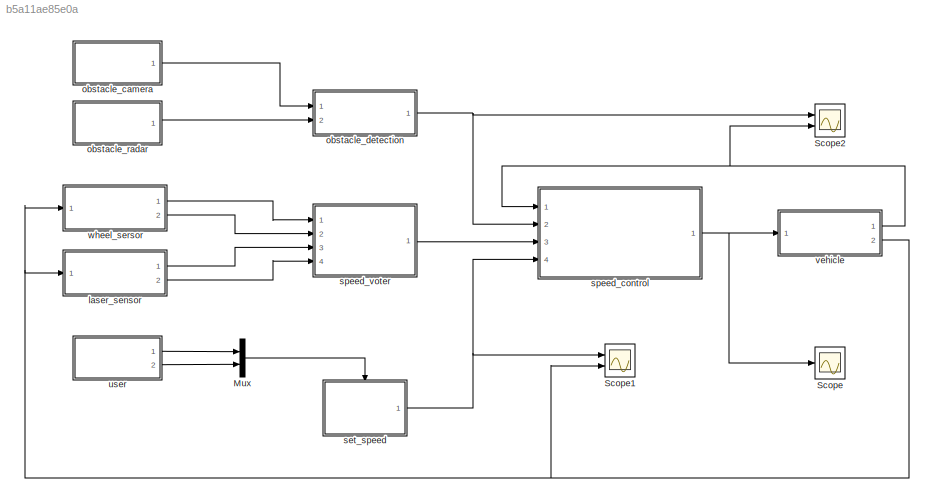
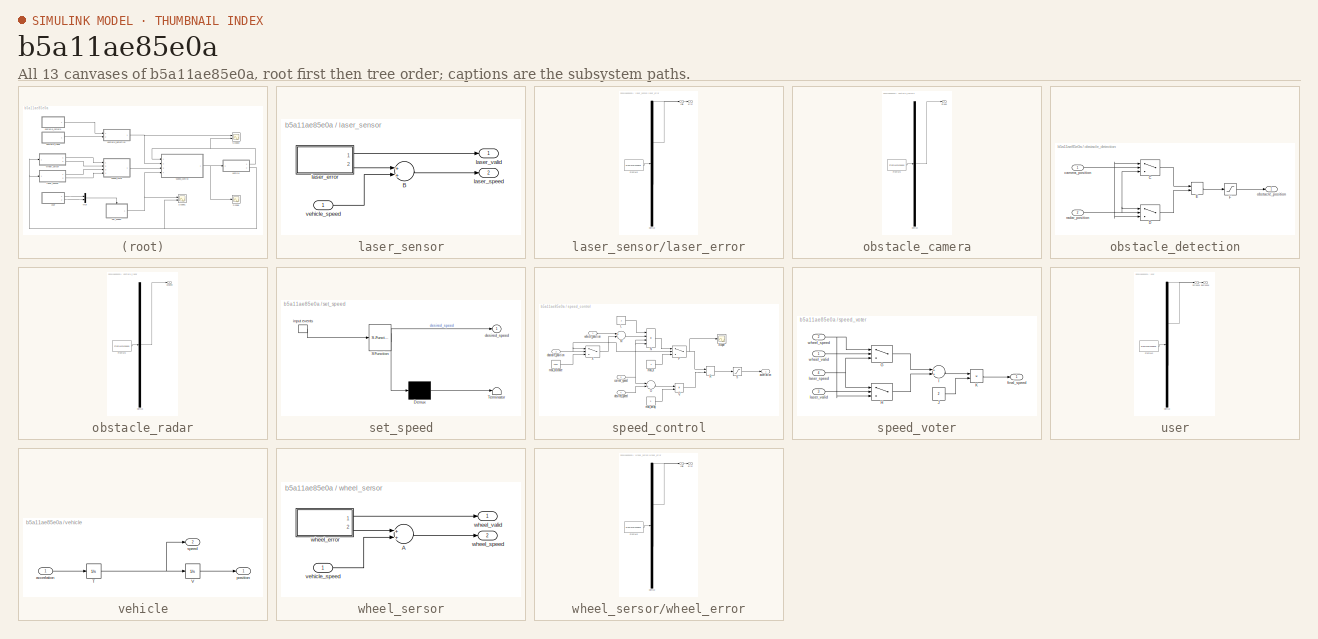
[diagram: thumbnail index - all 13 canvases of the model, root first then tree order]
MODEL slx_b5a11ae85e0a
KIND model
CONFIG AbsTol = auto
CONFIG EnableMultiTasking = off
CONFIG FixedStep = auto
CONFIG MaxStep = auto
CONFIG MinStep = auto
CONFIG RelTol = 1e-3
CONFIG SampleTimeConstraint = Unconstrained
CONFIG Solver = VariableStepAuto
CONFIG SolverName = VariableStepAuto
CONFIG StartTime = 0.0
CONFIG StopTime = 20
BLOCK [Mux] Mux
  DisplayOption = bar
  Inputs = 2
  Ports = [2, 1]
BLOCK [Scope] Scope
  Floating = off
  NumInputPorts = 1
  Ports = [1]
  ScopeSpecificationString = Simulink.scopes.TimeScopeBlockCfg('CurrentConfiguration', extmgr.ConfigurationSet(extmgr.Configuration('Core','General UI',true),extmgr.Configuration('Core','Source UI',true),extmgr.Configuration('Sources','WiredSimulink',true,'DataLoggingVariableName','ScopeData1'),extmgr.Configuration('Visuals','Time Domain',true,'SerializedDisplays',{struct('MinYLimReal','-0.52146','MaxYLimReal','1.0978','YLabe...<+1368ch>
BLOCK [Scope] Scope1
  Floating = off
  NumInputPorts = 2
  Ports = [2]
  ScopeSpecificationString = Simulink.scopes.TimeScopeBlockCfg('CurrentConfiguration', extmgr.ConfigurationSet(extmgr.Configuration('Core','General UI',true),extmgr.Configuration('Core','Source UI',true),extmgr.Configuration('Sources','WiredSimulink',true,'DataLoggingVariableName','ScopeData2'),extmgr.Configuration('Visuals','Time Domain',true,'SerializedDisplays',{struct('MinYLimReal','-0.375','MaxYLimReal','3.375','YLabelRe...<+1397ch>
BLOCK [Scope] Scope2
  Floating = off
  NumInputPorts = 2
  Ports = [2]
  ScopeSpecificationString = Simulink.scopes.TimeScopeBlockCfg('CurrentConfiguration', extmgr.ConfigurationSet(extmgr.Configuration('Core','General UI',true),extmgr.Configuration('Core','Source UI',true),extmgr.Configuration('Sources','WiredSimulink',true),extmgr.Configuration('Visuals','Time Domain',true,'SerializedDisplays',{struct('MinYLimReal','-8.13864','MaxYLimReal','73.24778','YLabelReal','','MinYLimMag','0.00000','Max...<+1354ch>
BLOCK [SubSystem] laser_sensor
  Ports = [1, 2]
  RequestExecContextInheritance = off
BLOCK [Sum] laser_sensor/B
  InputSameDT = off
  OutDataTypeStr = Inherit: Inherit via internal rule
  Ports = [2, 1]
  SampleTime = 0.1
  SaturateOnIntegerOverflow = off
BLOCK [SubSystem] laser_sensor/laser_error
  ClipboardFcn = sigbuilder_block('clipboard');
  CloseFcn = sigbuilder_block('close');
  ContinueFcn = sigbuilder_block('continue');
  CopyFcn = sigbuilder_block('copy');
  DeleteFcn = sigbuilder_block('delete');
  LoadFcn = sigbuilder_block('load');
  MaskHideContents = on
  ModelCloseFcn = sigbuilder_block('modelClose');
  NameChangeFcn = sigbuilder_block('namechange');
  OpenFcn = sigbuilder_block('open',[0 68 1280 636 ]);
  PauseFcn = sigbuilder_block('pause');
  Ports = [0, 2]
  PreSaveFcn = sigbuilder_block('preSave');
  RequestExecContextInheritance = off
  StartFcn = sigbuilder_block('start');
  StopFcn = sigbuilder_block('stop');
  Tag = STV Subsys
BLOCK [Demux] laser_sensor/laser_error/Demux
  Outputs = 2
  Ports = [1, 2]
  Tag = STV Demux
BLOCK [FromWorkspace] laser_sensor/laser_error/FromWs
  SampleTime = 0
  Tag = STV FromWs
  VariableName = tuvar
  ZeroCross = on
BLOCK [Outport] laser_sensor/laser_error/error
  IconDisplay = Port number
  Port = 2
  Tag = STV Outport
BLOCK [Outport] laser_sensor/laser_error/valid
  IconDisplay = Port number
  Tag = STV Outport
BLOCK [Outport] laser_sensor/laser_speed
  IconDisplay = Port number
  Port = 2
BLOCK [Outport] laser_sensor/laser_valid
  IconDisplay = Port number
BLOCK [Inport] laser_sensor/vehicle_speed
  IconDisplay = Port number
BLOCK [SubSystem] obstacle_camera
  ClipboardFcn = sigbuilder_block('clipboard');
  CloseFcn = sigbuilder_block('close');
  ContinueFcn = sigbuilder_block('continue');
  CopyFcn = sigbuilder_block('copy');
  DeleteFcn = sigbuilder_block('delete');
  LoadFcn = sigbuilder_block('load');
  MaskHideContents = on
  ModelCloseFcn = sigbuilder_block('modelClose');
  NameChangeFcn = sigbuilder_block('namechange');
  OpenFcn = sigbuilder_block('open',[0 68 1280 636 ]);
  PauseFcn = sigbuilder_block('pause');
  Ports = [0, 1]
  PreSaveFcn = sigbuilder_block('preSave');
  RequestExecContextInheritance = off
  StartFcn = sigbuilder_block('start');
  StopFcn = sigbuilder_block('stop');
  Tag = STV Subsys
BLOCK [Demux] obstacle_camera/Demux
  Outputs = 1
  Ports = [1, 1]
  Tag = STV Demux
BLOCK [FromWorkspace] obstacle_camera/FromWs
  SampleTime = 0
  Tag = STV FromWs
  VariableName = tuvar
  ZeroCross = on
BLOCK [Outport] obstacle_camera/image
  IconDisplay = Port number
  Tag = STV Outport
BLOCK [SubSystem] obstacle_detection
  Ports = [2, 1]
  RequestExecContextInheritance = off
BLOCK [Switch] obstacle_detection/C
  Criteria = u2 > Threshold
  InputSameDT = off
  SampleTime = 0.1
  SaturateOnIntegerOverflow = off
BLOCK [Switch] obstacle_detection/D
  Criteria = u2 > Threshold
  InputSameDT = off
  SampleTime = 0.1
  SaturateOnIntegerOverflow = off
BLOCK [MinMax] obstacle_detection/E
  InputSameDT = off
  Inputs = 2
  Ports = [2, 1]
  SampleTime = 0.1
  SaturateOnIntegerOverflow = off
BLOCK [Saturate] obstacle_detection/F
  InputPortMap = u0
  LowerLimit = 0
  Ports = [1, 1]
  SampleTime = 0.1
  UpperLimit = 100
BLOCK [Inport] obstacle_detection/camera_position
  IconDisplay = Port number
BLOCK [Outport] obstacle_detection/obstacle_position
  IconDisplay = Port number
BLOCK [Inport] obstacle_detection/radar_position
  IconDisplay = Port number
  Port = 2
BLOCK [SubSystem] obstacle_radar
  ClipboardFcn = sigbuilder_block('clipboard');
  CloseFcn = sigbuilder_block('close');
  ContinueFcn = sigbuilder_block('continue');
  CopyFcn = sigbuilder_block('copy');
  DeleteFcn = sigbuilder_block('delete');
  LoadFcn = sigbuilder_block('load');
  MaskHideContents = on
  ModelCloseFcn = sigbuilder_block('modelClose');
  NameChangeFcn = sigbuilder_block('namechange');
  OpenFcn = sigbuilder_block('open',[0 68 1280 636 ]);
  PauseFcn = sigbuilder_block('pause');
  Ports = [0, 1]
  PreSaveFcn = sigbuilder_block('preSave');
  RequestExecContextInheritance = off
  StartFcn = sigbuilder_block('start');
  StopFcn = sigbuilder_block('stop');
  Tag = STV Subsys
BLOCK [Demux] obstacle_radar/Demux
  Outputs = 1
  Ports = [1, 1]
  Tag = STV Demux
BLOCK [FromWorkspace] obstacle_radar/FromWs
  SampleTime = 0
  Tag = STV FromWs
  VariableName = tuvar
  ZeroCross = on
BLOCK [Outport] obstacle_radar/position
  IconDisplay = Port number
  Tag = STV Outport
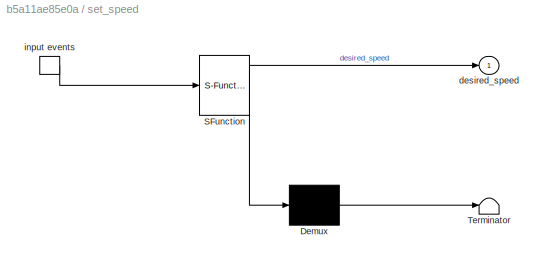
BLOCK [SubSystem] set_speed
  ErrorFcn = Stateflow.Translate.translate
  PermitHierarchicalResolution = ExplicitOnly
  Ports = [0, 1, 0, 1]
  RequestExecContextInheritance = off
  SFBlockType = Chart
  TreatAsAtomicUnit = on
BLOCK [Demux] set_speed/ Demux 
  Outputs = 1
  Ports = [1, 1]
BLOCK [S-Function] set_speed/ SFunction 
  EnableBusSupport = on
  FunctionName = sf_sfun
  PortCounts = [1 2]
  Ports = [1, 2]
  SFcnIsStateOwnerBlock = off
  SFunctionDeploymentMode = off
  Tag = Stateflow S-Function velocity_control_with_stateflow 3
BLOCK [Terminator] set_speed/ Terminator 
BLOCK [Outport] set_speed/desired_speed
  IconDisplay = Port number
BLOCK [TriggerPort] set_speed/input events
  Ports = [0, 1]
  ShowOutputPort = on
  StatesWhenEnabling = held
  TriggerType = either
  VariantControl = (inherit)
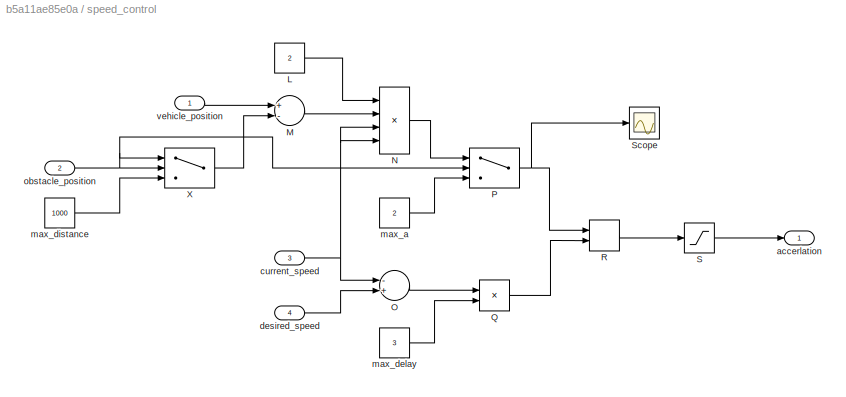
BLOCK [SubSystem] speed_control
  Ports = [4, 1]
  RequestExecContextInheritance = off
BLOCK [Constant] speed_control/L
  Value = 2
BLOCK [Sum] speed_control/M
  InputSameDT = off
  Inputs = +-
  OutDataTypeStr = Inherit: Inherit via internal rule
  Ports = [2, 1]
  SampleTime = 0.1
  SaturateOnIntegerOverflow = off
BLOCK [Product] speed_control/N
  InputSameDT = off
  Inputs = //**
  OutDataTypeStr = Inherit: Inherit via internal rule
  Ports = [4, 1]
  RndMeth = Floor
  SampleTime = 0.1
  SaturateOnIntegerOverflow = off
BLOCK [Sum] speed_control/O
  InputSameDT = off
  Inputs = -+
  OutDataTypeStr = Inherit: Inherit via internal rule
  Ports = [2, 1]
  SampleTime = 0.1
  SaturateOnIntegerOverflow = off
BLOCK [Switch] speed_control/P
  Criteria = u2 ~= 0
  InputSameDT = off
  SampleTime = 0.1
  SaturateOnIntegerOverflow = off
BLOCK [Product] speed_control/Q
  InputSameDT = off
  Inputs = */
  OutDataTypeStr = Inherit: Inherit via internal rule
  Ports = [2, 1]
  RndMeth = Floor
  SampleTime = 0.1
  SaturateOnIntegerOverflow = off
BLOCK [MinMax] speed_control/R
  InputSameDT = off
  Inputs = 2
  Ports = [2, 1]
  SampleTime = 0.1
  SaturateOnIntegerOverflow = off
BLOCK [Saturate] speed_control/S
  InputPortMap = u0
  LowerLimit = -2
  Ports = [1, 1]
  SampleTime = 0.1
  UpperLimit = 2
BLOCK [Scope] speed_control/Scope
  Floating = off
  NumInputPorts = 1
  Ports = [1]
  ScopeSpecificationString = Simulink.scopes.TimeScopeBlockCfg('CurrentConfiguration', extmgr.ConfigurationSet(extmgr.Configuration('Core','General UI',true),extmgr.Configuration('Core','Source UI',true),extmgr.Configuration('Sources','WiredSimulink',true,'DataLoggingVariableName','ScopeData3'),extmgr.Configuration('Visuals','Time Domain',true,'SerializedDisplays',{struct('MinYLimReal','-0.64405','MaxYLimReal','2.29378','YLab...<+1365ch>
BLOCK [Switch] speed_control/X
  Criteria = u2 ~= 0
  InputSameDT = off
  SampleTime = 0.1
  SaturateOnIntegerOverflow = off
BLOCK [Outport] speed_control/accerlation
  IconDisplay = Port number
BLOCK [Inport] speed_control/current_speed
  IconDisplay = Port number
  Port = 3
BLOCK [Inport] speed_control/desired_speed
  IconDisplay = Port number
  Port = 4
BLOCK [Constant] speed_control/max_a
  Value = 2
BLOCK [Constant] speed_control/max_delay
  Value = 3
BLOCK [Constant] speed_control/max_distance
  Value = 1000
BLOCK [Inport] speed_control/obstacle_position
  IconDisplay = Port number
  Port = 2
BLOCK [Inport] speed_control/vehicle_position
  IconDisplay = Port number
BLOCK [SubSystem] speed_voter
  Ports = [4, 1]
  RequestExecContextInheritance = off
BLOCK [Switch] speed_voter/G
  Criteria = u2 > Threshold
  InputSameDT = off
  SampleTime = 0.1
  SaturateOnIntegerOverflow = off
BLOCK [Switch] speed_voter/H
  Criteria = u2 > Threshold
  InputSameDT = off
  SampleTime = 0.1
  SaturateOnIntegerOverflow = off
BLOCK [Sum] speed_voter/I
  InputSameDT = off
  OutDataTypeStr = Inherit: Inherit via internal rule
  Ports = [2, 1]
  SampleTime = 0.1
  SaturateOnIntegerOverflow = off
BLOCK [Constant] speed_voter/J
  Value = 2
BLOCK [Product] speed_voter/K
  InputSameDT = off
  Inputs = */
  OutDataTypeStr = Inherit: Inherit via internal rule
  Ports = [2, 1]
  RndMeth = Floor
  SampleTime = 0.1
  SaturateOnIntegerOverflow = off
BLOCK [Outport] speed_voter/final_speed
  IconDisplay = Port number
BLOCK [Inport] speed_voter/laser_speed
  IconDisplay = Port number
  Port = 4
BLOCK [Inport] speed_voter/laser_valid
  IconDisplay = Port number
  Port = 3
BLOCK [Inport] speed_voter/wheel_speed
  IconDisplay = Port number
  Port = 2
BLOCK [Inport] speed_voter/wheel_valid
  IconDisplay = Port number
BLOCK [SubSystem] user
  ClipboardFcn = sigbuilder_block('clipboard');
  CloseFcn = sigbuilder_block('close');
  ContinueFcn = sigbuilder_block('continue');
  CopyFcn = sigbuilder_block('copy');
  DeleteFcn = sigbuilder_block('delete');
  LoadFcn = sigbuilder_block('load');
  MaskHideContents = on
  ModelCloseFcn = sigbuilder_block('modelClose');
  NameChangeFcn = sigbuilder_block('namechange');
  OpenFcn = sigbuilder_block('open',[0 68 1280 636 ]);
  PauseFcn = sigbuilder_block('pause');
  Ports = [0, 2]
  PreSaveFcn = sigbuilder_block('preSave');
  RequestExecContextInheritance = off
  StartFcn = sigbuilder_block('start');
  StopFcn = sigbuilder_block('stop');
  Tag = STV Subsys
BLOCK [Demux] user/Demux
  Outputs = 2
  Ports = [1, 2]
  Tag = STV Demux
BLOCK [FromWorkspace] user/FromWs
  SampleTime = 0
  Tag = STV FromWs
  VariableName = tuvar
  ZeroCross = on
BLOCK [Outport] user/decrease
  IconDisplay = Port number
  Port = 2
  Tag = STV Outport
BLOCK [Outport] user/increase
  IconDisplay = Port number
  Tag = STV Outport
BLOCK [SubSystem] vehicle
  Ports = [1, 2]
  RequestExecContextInheritance = off
BLOCK [Integrator] vehicle/T
  Ports = [1, 1]
BLOCK [Integrator] vehicle/V
  Ports = [1, 1]
BLOCK [Inport] vehicle/accerlation
  IconDisplay = Port number
BLOCK [Outport] vehicle/position
  IconDisplay = Port number
BLOCK [Outport] vehicle/speed
  IconDisplay = Port number
  Port = 2
BLOCK [SubSystem] wheel_sersor
  Ports = [1, 2]
  RequestExecContextInheritance = off
BLOCK [Sum] wheel_sersor/A
  InputSameDT = off
  OutDataTypeStr = Inherit: Inherit via internal rule
  Ports = [2, 1]
  SampleTime = 0.1
  SaturateOnIntegerOverflow = off
BLOCK [Inport] wheel_sersor/vehicle_speed
  IconDisplay = Port number
BLOCK [SubSystem] wheel_sersor/wheel_error
  ClipboardFcn = sigbuilder_block('clipboard');
  CloseFcn = sigbuilder_block('close');
  ContinueFcn = sigbuilder_block('continue');
  CopyFcn = sigbuilder_block('copy');
  DeleteFcn = sigbuilder_block('delete');
  LoadFcn = sigbuilder_block('load');
  MaskHideContents = on
  ModelCloseFcn = sigbuilder_block('modelClose');
  NameChangeFcn = sigbuilder_block('namechange');
  OpenFcn = sigbuilder_block('open',[0 68 1280 636 ]);
  PauseFcn = sigbuilder_block('pause');
  Ports = [0, 2]
  PreSaveFcn = sigbuilder_block('preSave');
  RequestExecContextInheritance = off
  StartFcn = sigbuilder_block('start');
  StopFcn = sigbuilder_block('stop');
  Tag = STV Subsys
BLOCK [Demux] wheel_sersor/wheel_error/Demux
  Outputs = 2
  Ports = [1, 2]
  Tag = STV Demux
BLOCK [FromWorkspace] wheel_sersor/wheel_error/FromWs
  SampleTime = 0
  Tag = STV FromWs
  VariableName = tuvar
  ZeroCross = on
BLOCK [Outport] wheel_sersor/wheel_error/error
  IconDisplay = Port number
  Port = 2
  Tag = STV Outport
BLOCK [Outport] wheel_sersor/wheel_error/valid
  IconDisplay = Port number
  Tag = STV Outport
BLOCK [Outport] wheel_sersor/wheel_speed
  IconDisplay = Port number
  Port = 2
BLOCK [Outport] wheel_sersor/wheel_valid
  IconDisplay = Port number
LINE Mux:1 -> set_speed:trigger
LINE laser_sensor/B:1 -> laser_sensor/laser_speed:1
LINE laser_sensor/laser_error:1 -> laser_sensor/laser_valid:1
LINE laser_sensor/laser_error:2 -> laser_sensor/B:1
LINE laser_sensor/vehicle_speed:1 -> laser_sensor/B:2
LINE laser_sensor:1 -> speed_voter:3
LINE laser_sensor:2 -> speed_voter:4
LINE obstacle_camera:1 -> obstacle_detection:1
LINE obstacle_detection/C:1 -> obstacle_detection/E:1
LINE obstacle_detection/D:1 -> obstacle_detection/E:2
LINE obstacle_detection/E:1 -> obstacle_detection/F:1
LINE obstacle_detection/F:1 -> obstacle_detection/obstacle_position:1
NET obstacle_detection/camera_position:1 -> obstacle_detection/C:1, obstacle_detection/C:2, obstacle_detection/D:3
NET obstacle_detection/radar_position:1 -> obstacle_detection/C:3, obstacle_detection/D:1, obstacle_detection/D:2
NET obstacle_detection:1 -> Scope2:1, speed_control:2
LINE obstacle_radar:1 -> obstacle_detection:2
NET set_speed:1 -> Scope1:1, speed_control:4
LINE speed_control/L:1 -> speed_control/N:1
LINE speed_control/M:1 -> speed_control/N:2
LINE speed_control/N:1 -> speed_control/P:1
LINE speed_control/O:1 -> speed_control/Q:1
NET speed_control/P:1 -> speed_control/R:1, speed_control/Scope:1
LINE speed_control/Q:1 -> speed_control/R:2
LINE speed_control/R:1 -> speed_control/S:1
LINE speed_control/S:1 -> speed_control/accerlation:1
LINE speed_control/X:1 -> speed_control/M:2
NET speed_control/current_speed:1 -> speed_control/N:3, speed_control/N:4, speed_control/O:1
LINE speed_control/desired_speed:1 -> speed_control/O:2
LINE speed_control/max_a:1 -> speed_control/P:3
LINE speed_control/max_delay:1 -> speed_control/Q:2
LINE speed_control/max_distance:1 -> speed_control/X:3
NET speed_control/obstacle_position:1 -> speed_control/P:2, speed_control/X:1, speed_control/X:2
LINE speed_control/vehicle_position:1 -> speed_control/M:1
NET speed_control:1 -> Scope:1, vehicle:1
LINE speed_voter/G:1 -> speed_voter/I:1
LINE speed_voter/H:1 -> speed_voter/I:2
LINE speed_voter/I:1 -> speed_voter/K:1
LINE speed_voter/J:1 -> speed_voter/K:2
LINE speed_voter/K:1 -> speed_voter/final_speed:1
NET speed_voter/laser_speed:1 -> speed_voter/G:3, speed_voter/H:1
LINE speed_voter/laser_valid:1 -> speed_voter/H:2
NET speed_voter/wheel_speed:1 -> speed_voter/G:1, speed_voter/H:3
LINE speed_voter/wheel_valid:1 -> speed_voter/G:2
LINE speed_voter:1 -> speed_control:3
LINE user:1 -> Mux:1
LINE user:2 -> Mux:2
NET vehicle/T:1 -> vehicle/V:1, vehicle/speed:1
LINE vehicle/V:1 -> vehicle/position:1
LINE vehicle/accerlation:1 -> vehicle/T:1
NET vehicle:1 -> Scope2:2, speed_control:1
NET vehicle:2 -> Scope1:2, laser_sensor:1, wheel_sersor:1
LINE wheel_sersor/A:1 -> wheel_sersor/wheel_speed:1
LINE wheel_sersor/vehicle_speed:1 -> wheel_sersor/A:2
LINE wheel_sersor/wheel_error:1 -> wheel_sersor/wheel_valid:1
LINE wheel_sersor/wheel_error:2 -> wheel_sersor/A:1
LINE wheel_sersor:1 -> speed_voter:1
LINE wheel_sersor:2 -> speed_voter:2
note: NET lines group one-source signal fan-out (src -> all destinations, sorted); 1:1 wires keep LINE
CHART set_speed states=1 transitions=3
  STATE_LABEL 'update'
